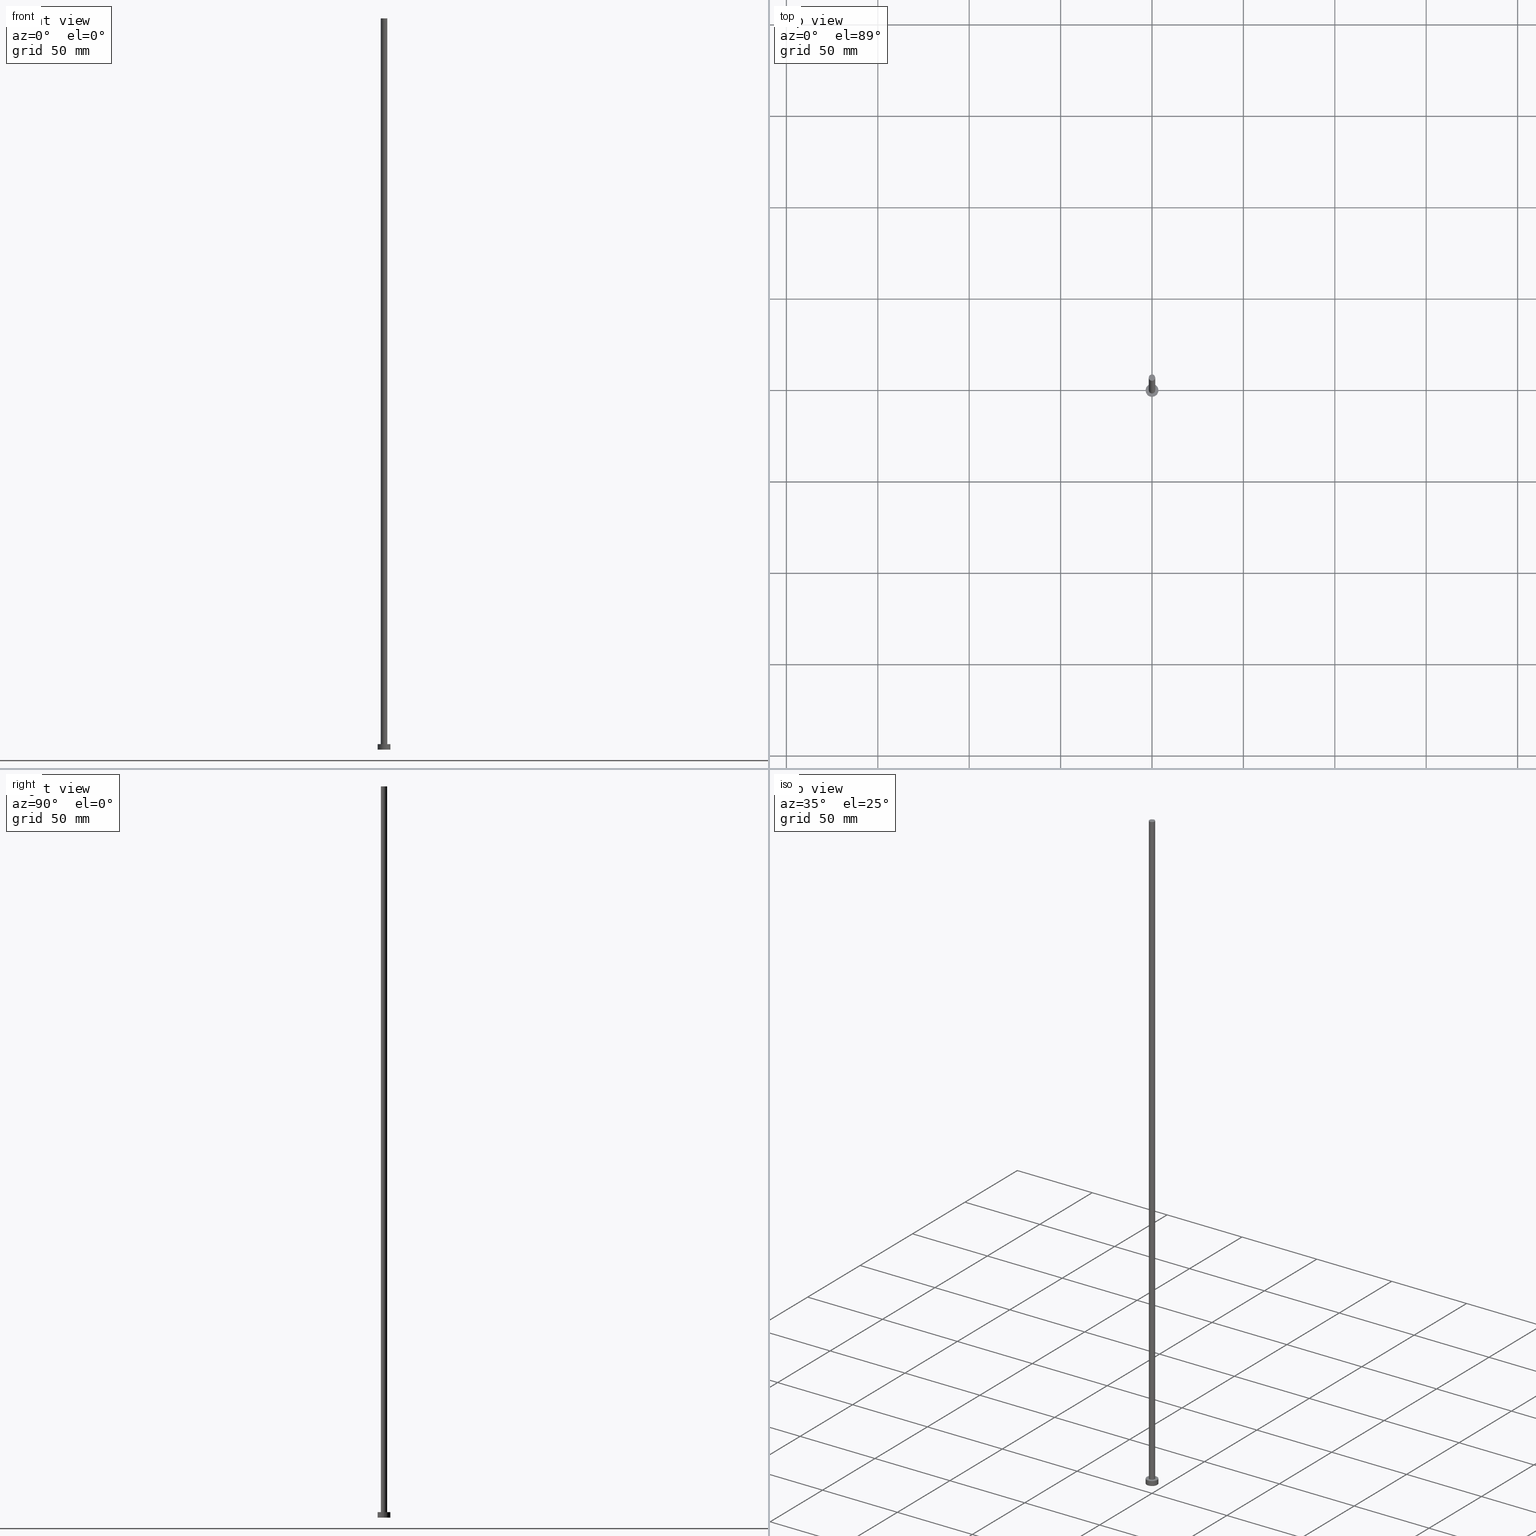
[diagram: canonical four-view strip — front | top / right | iso, engineering-drawing reading convention]
A machine part, canonical four-view strip (front | top / right | iso — engineering-drawing reading convention). The complete STEP part file that produces these views, byte-faithful:
ISO-10303-21;
HEADER;
FILE_DESCRIPTION (( 'STEP AP203' ),
    '1' );
FILE_NAME ('467d.STEP',
    '2023-02-12T12:03:25',
    ( '' ),
    ( '' ),
    'SwSTEP 2.0',
    'SolidWorks 2019',
    '' );
FILE_SCHEMA (( 'CONFIG_CONTROL_DESIGN' ));
ENDSEC;

DATA;
#1 = APPROVAL_PERSON_ORGANIZATION ( #36, #102, #82 ) ;
#2 = PERSON_AND_ORGANIZATION ( #38, #170 ) ;
#3 = APPLICATION_CONTEXT ( 'configuration controlled 3d designs of mechanical parts and assemblies' ) ;
#4 = COORDINATED_UNIVERSAL_TIME_OFFSET ( 1, 0, .AHEAD. ) ;
#5 = EDGE_CURVE ( 'NONE', #96, #56, #227, .T. ) ;
#6 = CARTESIAN_POINT ( 'NONE',  ( 0.000000000000000000, 0.000000000000000000, 400.0000000000000000 ) ) ;
#7 = FACE_OUTER_BOUND ( 'NONE', #181, .T. ) ;
#8 = DESIGN_CONTEXT ( 'detailed design', #3, 'design' ) ;
#9 = CARTESIAN_POINT ( 'NONE',  ( 0.000000000000000000, 0.000000000000000000, 400.0000000000000000 ) ) ;
#10 = ADVANCED_FACE ( 'NONE', ( #7 ), #74, .T. ) ;
#11 = DIRECTION ( 'NONE',  ( 1.000000000000000000, 0.000000000000000000, 0.000000000000000000 ) ) ;
#12 = CARTESIAN_POINT ( 'NONE',  ( 0.000000000000000000, 0.000000000000000000, 400.0000000000000000 ) ) ;
#13 = ORIENTED_EDGE ( 'NONE', *, *, #97, .F. ) ;
#14 = EDGE_CURVE ( 'NONE', #236, #185, #135, .T. ) ;
#15 = DIRECTION ( 'NONE',  ( -0.000000000000000000, -0.000000000000000000, -1.000000000000000000 ) ) ;
#16 = ORIENTED_EDGE ( 'NONE', *, *, #247, .T. ) ;
#17 = CARTESIAN_POINT ( 'NONE',  ( 0.000000000000000000, 0.000000000000000000, 3.000000000000000000 ) ) ;
#18 = AXIS2_PLACEMENT_3D ( 'NONE', #160, #48, #11 ) ;
#19 = MANIFOLD_SOLID_BREP ( 'P�idat vysunut�m3', #206 ) ;
#20 = DIRECTION ( 'NONE',  ( 0.000000000000000000, 0.000000000000000000, 1.000000000000000000 ) ) ;
#21 = ADVANCED_FACE ( 'NONE', ( #161, #140 ), #158, .T. ) ;
#22 = DATE_TIME_ROLE ( 'creation_date' ) ;
#23 = PERSON_AND_ORGANIZATION ( #38, #170 ) ;
#24 = AXIS2_PLACEMENT_3D ( 'NONE', #210, #15, #225 ) ;
#25 = APPROVAL ( #216, 'NEUR�EN�' ) ;
#26 = CALENDAR_DATE ( 2023, 12, 2 ) ;
#27 = CALENDAR_DATE ( 2023, 12, 2 ) ;
#28 = DIRECTION ( 'NONE',  ( -0.000000000000000000, -0.000000000000000000, -1.000000000000000000 ) ) ;
#29 = DIRECTION ( 'NONE',  ( 0.000000000000000000, 0.000000000000000000, 1.000000000000000000 ) ) ;
#30 = LINE ( 'NONE', #104, #254 ) ;
#31 = DIRECTION ( 'NONE',  ( -0.000000000000000000, -0.000000000000000000, -1.000000000000000000 ) ) ;
#32 = CYLINDRICAL_SURFACE ( 'NONE', #146, 1.750000000000000000 ) ;
#33 = EDGE_LOOP ( 'NONE', ( #127, #142, #108, #110 ) ) ;
#34 = CYLINDRICAL_SURFACE ( 'NONE', #57, 3.500000000000000000 ) ;
#35 = ORIENTED_EDGE ( 'NONE', *, *, #243, .T. ) ;
#36 = PERSON_AND_ORGANIZATION ( #38, #170 ) ;
#37 = FACE_OUTER_BOUND ( 'NONE', #186, .T. ) ;
#38 = PERSON ( 'NEUR�EN�', 'NEUR�EN�', 'NEUR�EN�', ('NEUR�EN�'), ('NEUR�EN�'), ('NEUR�EN�') ) ;
#39 = MECHANICAL_CONTEXT ( 'NONE', #188, 'mechanical' ) ;
#40 = CYLINDRICAL_SURFACE ( 'NONE', #24, 3.500000000000000000 ) ;
#41 = APPROVAL_DATE_TIME ( #193, #212 ) ;
#42 = LOCAL_TIME ( 13, 3, 25.00000000000000000, #233 ) ;
#43 = CALENDAR_DATE ( 2023, 12, 2 ) ;
#44 = PERSON_AND_ORGANIZATION ( #38, #170 ) ;
#45 = AXIS2_PLACEMENT_3D ( 'NONE', #6, #92, #90 ) ;
#46 = CIRCLE ( 'NONE', #248, 1.750000000000000000 ) ;
#47 = CARTESIAN_POINT ( 'NONE',  ( 0.000000000000000000, 0.000000000000000000, 3.000000000000000000 ) ) ;
#48 = DIRECTION ( 'NONE',  ( 0.000000000000000000, 0.000000000000000000, 1.000000000000000000 ) ) ;
#49 = CARTESIAN_POINT ( 'NONE',  ( 0.000000000000000000, 0.000000000000000000, 3.000000000000000000 ) ) ;
#50 = VECTOR ( 'NONE', #251, 1000.000000000000000 ) ;
#51 = CIRCLE ( 'NONE', #105, 3.500000000000000000 ) ;
#52 = ORIENTED_EDGE ( 'NONE', *, *, #180, .F. ) ;
#53 = DIRECTION ( 'NONE',  ( 0.000000000000000000, 0.000000000000000000, 1.000000000000000000 ) ) ;
#54 = ORIENTED_EDGE ( 'NONE', *, *, #109, .F. ) ;
#55 = FACE_OUTER_BOUND ( 'NONE', #75, .T. ) ;
#56 = VERTEX_POINT ( 'NONE', #107 ) ;
#57 = AXIS2_PLACEMENT_3D ( 'NONE', #17, #77, #117 ) ;
#58 = APPROVAL_PERSON_ORGANIZATION ( #232, #212, #255 ) ;
#59 = DIRECTION ( 'NONE',  ( 1.000000000000000000, 0.000000000000000000, 0.000000000000000000 ) ) ;
#60 = DIRECTION ( 'NONE',  ( 1.000000000000000000, 0.000000000000000000, 0.000000000000000000 ) ) ;
#61 = CC_DESIGN_DATE_AND_TIME_ASSIGNMENT ( #68, #22, ( #178 ) ) ;
#62 = DIRECTION ( 'NONE',  ( 0.000000000000000000, 0.000000000000000000, 1.000000000000000000 ) ) ;
#63 = CC_DESIGN_APPROVAL ( #102, ( #178 ) ) ;
#64 = EDGE_CURVE ( 'NONE', #226, #185, #30, .T. ) ;
#65 = PERSON_AND_ORGANIZATION ( #38, #170 ) ;
#66 = CC_DESIGN_APPROVAL ( #25, ( #148 ) ) ;
#67 = CC_DESIGN_APPROVAL ( #212, ( #71 ) ) ;
#68 = DATE_AND_TIME ( #213, #138 ) ;
#69 = AXIS2_PLACEMENT_3D ( 'NONE', #9, #28, #122 ) ;
#70 = DIRECTION ( 'NONE',  ( 1.000000000000000000, 0.000000000000000000, 0.000000000000000000 ) ) ;
#71 = PRODUCT_DEFINITION_FORMATION_WITH_SPECIFIED_SOURCE ( 'LIBOVOLN�', '', #177, .NOT_KNOWN. ) ;
#72 = ORIENTED_EDGE ( 'NONE', *, *, #180, .T. ) ;
#73 = CC_DESIGN_DATE_AND_TIME_ASSIGNMENT ( #100, #174, ( #148 ) ) ;
#74 = PLANE ( 'NONE',  #45 ) ;
#75 = EDGE_LOOP ( 'NONE', ( #13, #190, #35, #166 ) ) ;
#76 = CARTESIAN_POINT ( 'NONE',  ( 3.500000000000000000, 4.286263797015736595E-16, 0.000000000000000000 ) ) ;
#77 = DIRECTION ( 'NONE',  ( -0.000000000000000000, -0.000000000000000000, -1.000000000000000000 ) ) ;
#78 = EDGE_LOOP ( 'NONE', ( #246, #111 ) ) ;
#79 = CARTESIAN_POINT ( 'NONE',  ( -3.500000000000000000, 0.000000000000000000, 3.000000000000000000 ) ) ;
#80 = ORIENTED_EDGE ( 'NONE', *, *, #109, .T. ) ;
#81 = CIRCLE ( 'NONE', #18, 1.750000000000000000 ) ;
#82 = APPROVAL_ROLE ( '' ) ;
#83 = DIRECTION ( 'NONE',  ( 0.000000000000000000, 0.000000000000000000, 1.000000000000000000 ) ) ;
#84 = AXIS2_PLACEMENT_3D ( 'NONE', #49, #240, #201 ) ;
#85 = VECTOR ( 'NONE', #228, 1000.000000000000000 ) ;
#86 = SHAPE_DEFINITION_REPRESENTATION ( #131, #242 ) ;
#87 = ADVANCED_FACE ( 'NONE', ( #197 ), #203, .T. ) ;
#88 = ORIENTED_EDGE ( 'NONE', *, *, #151, .T. ) ;
#89 = LOCAL_TIME ( 13, 3, 25.00000000000000000, #175 ) ;
#90 = DIRECTION ( 'NONE',  ( 1.000000000000000000, 0.000000000000000000, -0.000000000000000000 ) ) ;
#91 = CARTESIAN_POINT ( 'NONE',  ( 3.500000000000000000, 4.286263797015736595E-16, 3.000000000000000000 ) ) ;
#92 = DIRECTION ( 'NONE',  ( 0.000000000000000000, 0.000000000000000000, 1.000000000000000000 ) ) ;
#93 = CARTESIAN_POINT ( 'NONE',  ( 1.750000000000000000, 2.143131898507868297E-16, 400.0000000000000000 ) ) ;
#94 = VERTEX_POINT ( 'NONE', #76 ) ;
#95 = CARTESIAN_POINT ( 'NONE',  ( -1.750000000000000000, 0.000000000000000000, 400.0000000000000000 ) ) ;
#96 = VERTEX_POINT ( 'NONE', #202 ) ;
#97 = EDGE_CURVE ( 'NONE', #96, #94, #241, .T. ) ;
#98 = DIRECTION ( 'NONE',  ( 1.000000000000000000, 0.000000000000000000, 0.000000000000000000 ) ) ;
#99 = AXIS2_PLACEMENT_3D ( 'NONE', #179, #143, #224 ) ;
#100 = DATE_AND_TIME ( #26, #42 ) ;
#101 = APPROVAL_STATUS ( 'not_yet_approved' ) ;
#102 = APPROVAL ( #171, 'NEUR�EN�' ) ;
#103 = APPROVAL_DATE_TIME ( #235, #25 ) ;
#104 = CARTESIAN_POINT ( 'NONE',  ( 1.750000000000000000, 2.143131898507868297E-16, 400.0000000000000000 ) ) ;
#105 = AXIS2_PLACEMENT_3D ( 'NONE', #139, #199, #59 ) ;
#106 = ORIENTED_EDGE ( 'NONE', *, *, #5, .T. ) ;
#107 = CARTESIAN_POINT ( 'NONE',  ( -3.500000000000000000, 0.000000000000000000, 3.000000000000000000 ) ) ;
#108 = ORIENTED_EDGE ( 'NONE', *, *, #141, .T. ) ;
#109 = EDGE_CURVE ( 'NONE', #226, #112, #81, .T. ) ;
#110 = ORIENTED_EDGE ( 'NONE', *, *, #243, .F. ) ;
#111 = ORIENTED_EDGE ( 'NONE', *, *, #198, .F. ) ;
#112 = VERTEX_POINT ( 'NONE', #244 ) ;
#113 = CC_DESIGN_PERSON_AND_ORGANIZATION_ASSIGNMENT ( #44, #173, ( #71 ) ) ;
#114 = PLANE ( 'NONE',  #221 ) ;
#115 = AXIS2_PLACEMENT_3D ( 'NONE', #189, #20, #98 ) ;
#116 = PERSON_AND_ORGANIZATION_ROLE ( 'design_owner' ) ;
#117 = DIRECTION ( 'NONE',  ( -1.000000000000000000, 0.000000000000000000, 0.000000000000000000 ) ) ;
#118 = CALENDAR_DATE ( 2023, 12, 2 ) ;
#119 = PERSON_AND_ORGANIZATION_ROLE ( 'creator' ) ;
#120 = PERSON_AND_ORGANIZATION_ROLE ( 'creator' ) ;
#121 = CC_DESIGN_PERSON_AND_ORGANIZATION_ASSIGNMENT ( #2, #154, ( #148 ) ) ;
#122 = DIRECTION ( 'NONE',  ( -1.000000000000000000, 0.000000000000000000, 0.000000000000000000 ) ) ;
#123 = EDGE_LOOP ( 'NONE', ( #54, #208, #219, #163 ) ) ;
#124 = DIRECTION ( 'NONE',  ( 1.000000000000000000, 0.000000000000000000, 0.000000000000000000 ) ) ;
#125 = EDGE_LOOP ( 'NONE', ( #229, #52, #16, #205 ) ) ;
#126 = FACE_OUTER_BOUND ( 'NONE', #125, .T. ) ;
#127 = ORIENTED_EDGE ( 'NONE', *, *, #5, .F. ) ;
#128 = DIRECTION ( 'NONE',  ( 0.000000000000000000, 0.000000000000000000, 1.000000000000000000 ) ) ;
#129 = EDGE_CURVE ( 'NONE', #147, #94, #172, .T. ) ;
#130 = ORIENTED_EDGE ( 'NONE', *, *, #129, .F. ) ;
#131 = PRODUCT_DEFINITION_SHAPE ( 'NONE', 'NONE',  #178 ) ;
#132 =( NAMED_UNIT ( * ) SI_UNIT ( $, .STERADIAN. ) SOLID_ANGLE_UNIT ( ) );
#133 = CARTESIAN_POINT ( 'NONE',  ( 0.000000000000000000, 0.000000000000000000, 0.000000000000000000 ) ) ;
#134 = APPROVAL_DATE_TIME ( #136, #102 ) ;
#135 = CIRCLE ( 'NONE', #249, 1.750000000000000000 ) ;
#136 = DATE_AND_TIME ( #43, #162 ) ;
#137 = DIRECTION ( 'NONE',  ( -0.000000000000000000, -0.000000000000000000, -1.000000000000000000 ) ) ;
#138 = LOCAL_TIME ( 13, 3, 25.00000000000000000, #195 ) ;
#139 = CARTESIAN_POINT ( 'NONE',  ( 0.000000000000000000, 0.000000000000000000, 3.000000000000000000 ) ) ;
#140 = FACE_OUTER_BOUND ( 'NONE', #145, .T. ) ;
#141 = EDGE_CURVE ( 'NONE', #94, #147, #220, .T. ) ;
#142 = ORIENTED_EDGE ( 'NONE', *, *, #97, .T. ) ;
#143 = DIRECTION ( 'NONE',  ( 0.000000000000000000, 0.000000000000000000, 1.000000000000000000 ) ) ;
#144 = ADVANCED_FACE ( 'NONE', ( #126 ), #32, .T. ) ;
#145 = EDGE_LOOP ( 'NONE', ( #88, #106 ) ) ;
#146 = AXIS2_PLACEMENT_3D ( 'NONE', #12, #137, #217 ) ;
#147 = VERTEX_POINT ( 'NONE', #156 ) ;
#148 = SECURITY_CLASSIFICATION ( '', '', #194 ) ;
#149 = LINE ( 'NONE', #95, #85 ) ;
#150 = COORDINATED_UNIVERSAL_TIME_OFFSET ( 1, 0, .AHEAD. ) ;
#151 = EDGE_CURVE ( 'NONE', #56, #96, #51, .T. ) ;
#152 = APPLICATION_PROTOCOL_DEFINITION ( 'international standard', 'config_control_design', 1994, #3 ) ;
#153 = CIRCLE ( 'NONE', #115, 1.750000000000000000 ) ;
#154 = PERSON_AND_ORGANIZATION_ROLE ( 'classification_officer' ) ;
#155 = CC_DESIGN_PERSON_AND_ORGANIZATION_ASSIGNMENT ( #176, #120, ( #178 ) ) ;
#156 = CARTESIAN_POINT ( 'NONE',  ( -3.500000000000000000, 0.000000000000000000, 0.000000000000000000 ) ) ;
#157 = CARTESIAN_POINT ( 'NONE',  ( 0.000000000000000000, 0.000000000000000000, 0.000000000000000000 ) ) ;
#158 = PLANE ( 'NONE',  #84 ) ;
#159 = ADVANCED_FACE ( 'NONE', ( #37 ), #114, .F. ) ;
#160 = CARTESIAN_POINT ( 'NONE',  ( 0.000000000000000000, 0.000000000000000000, 400.0000000000000000 ) ) ;
#161 = FACE_BOUND ( 'NONE', #78, .T. ) ;
#162 = LOCAL_TIME ( 13, 3, 25.00000000000000000, #150 ) ;
#163 = ORIENTED_EDGE ( 'NONE', *, *, #247, .F. ) ;
#164 = CC_DESIGN_PERSON_AND_ORGANIZATION_ASSIGNMENT ( #23, #119, ( #71 ) ) ;
#165 = PERSON_AND_ORGANIZATION ( #38, #170 ) ;
#166 = ORIENTED_EDGE ( 'NONE', *, *, #129, .T. ) ;
#167 = APPLICATION_PROTOCOL_DEFINITION ( 'international standard', 'config_control_design', 1994, #188 ) ;
#168 = CARTESIAN_POINT ( 'NONE',  ( -1.750000000000000000, 0.000000000000000000, 3.000000000000000000 ) ) ;
#169 = VECTOR ( 'NONE', #31, 1000.000000000000000 ) ;
#170 = ORGANIZATION ( 'NEUR�EN�', 'NEUR�EN�', '' ) ;
#171 = APPROVAL_STATUS ( 'not_yet_approved' ) ;
#172 = CIRCLE ( 'NONE', #99, 3.500000000000000000 ) ;
#173 = PERSON_AND_ORGANIZATION_ROLE ( 'design_supplier' ) ;
#174 = DATE_TIME_ROLE ( 'classification_date' ) ;
#175 = COORDINATED_UNIVERSAL_TIME_OFFSET ( 1, 0, .AHEAD. ) ;
#176 = PERSON_AND_ORGANIZATION ( #38, #170 ) ;
#177 = PRODUCT ( '467d', '467d', '', ( #39 ) ) ;
#178 = PRODUCT_DEFINITION ( 'NEZN�M�', '', #71, #8 ) ;
#179 = CARTESIAN_POINT ( 'NONE',  ( 0.000000000000000000, 0.000000000000000000, 0.000000000000000000 ) ) ;
#180 = EDGE_CURVE ( 'NONE', #112, #226, #46, .T. ) ;
#181 = EDGE_LOOP ( 'NONE', ( #72, #80 ) ) ;
#182 = APPROVAL_PERSON_ORGANIZATION ( #65, #25, #196 ) ;
#183 = DIRECTION ( 'NONE',  ( -0.000000000000000000, -0.000000000000000000, -1.000000000000000000 ) ) ;
#184 = CARTESIAN_POINT ( 'NONE',  ( 0.000000000000000000, 0.000000000000000000, 3.000000000000000000 ) ) ;
#185 = VERTEX_POINT ( 'NONE', #231 ) ;
#186 = EDGE_LOOP ( 'NONE', ( #130, #239 ) ) ;
#187 = ADVANCED_FACE ( 'NONE', ( #55 ), #34, .T. ) ;
#188 = APPLICATION_CONTEXT ( 'configuration controlled 3d designs of mechanical parts and assemblies' ) ;
#189 = CARTESIAN_POINT ( 'NONE',  ( 0.000000000000000000, 0.000000000000000000, 3.000000000000000000 ) ) ;
#190 = ORIENTED_EDGE ( 'NONE', *, *, #151, .F. ) ;
#191 = CARTESIAN_POINT ( 'NONE',  ( 0.000000000000000000, 0.000000000000000000, 400.0000000000000000 ) ) ;
#192 = FACE_OUTER_BOUND ( 'NONE', #33, .T. ) ;
#193 = DATE_AND_TIME ( #118, #89 ) ;
#194 = SECURITY_CLASSIFICATION_LEVEL ( 'unclassified' ) ;
#195 = COORDINATED_UNIVERSAL_TIME_OFFSET ( 1, 0, .AHEAD. ) ;
#196 = APPROVAL_ROLE ( '' ) ;
#197 = FACE_OUTER_BOUND ( 'NONE', #123, .T. ) ;
#198 = EDGE_CURVE ( 'NONE', #185, #236, #153, .T. ) ;
#199 = DIRECTION ( 'NONE',  ( 0.000000000000000000, 0.000000000000000000, 1.000000000000000000 ) ) ;
#200 = CC_DESIGN_SECURITY_CLASSIFICATION ( #148, ( #71 ) ) ;
#201 = DIRECTION ( 'NONE',  ( 1.000000000000000000, 0.000000000000000000, -0.000000000000000000 ) ) ;
#202 = CARTESIAN_POINT ( 'NONE',  ( 3.500000000000000000, 4.286263797015736595E-16, 3.000000000000000000 ) ) ;
#203 = CYLINDRICAL_SURFACE ( 'NONE', #69, 1.750000000000000000 ) ;
#204 = ADVANCED_FACE ( 'NONE', ( #192 ), #40, .T. ) ;
#205 = ORIENTED_EDGE ( 'NONE', *, *, #14, .T. ) ;
#206 = CLOSED_SHELL ( 'NONE', ( #87, #204, #187, #21, #159, #144, #10 ) ) ;
#207 = DIRECTION ( 'NONE',  ( 1.000000000000000000, 0.000000000000000000, 0.000000000000000000 ) ) ;
#208 = ORIENTED_EDGE ( 'NONE', *, *, #64, .T. ) ;
#209 =( NAMED_UNIT ( * ) PLANE_ANGLE_UNIT ( ) SI_UNIT ( $, .RADIAN. ) );
#210 = CARTESIAN_POINT ( 'NONE',  ( 0.000000000000000000, 0.000000000000000000, 3.000000000000000000 ) ) ;
#211 = DIRECTION ( 'NONE',  ( 1.000000000000000000, 0.000000000000000000, -0.000000000000000000 ) ) ;
#212 = APPROVAL ( #101, 'NEUR�EN�' ) ;
#213 = CALENDAR_DATE ( 2023, 12, 2 ) ;
#214 = AXIS2_PLACEMENT_3D ( 'NONE', #157, #53, #70 ) ;
#215 = LOCAL_TIME ( 13, 3, 25.00000000000000000, #4 ) ;
#216 = APPROVAL_STATUS ( 'not_yet_approved' ) ;
#217 = DIRECTION ( 'NONE',  ( -1.000000000000000000, 0.000000000000000000, 0.000000000000000000 ) ) ;
#218 = DIRECTION ( 'NONE',  ( 1.000000000000000000, 0.000000000000000000, 0.000000000000000000 ) ) ;
#219 = ORIENTED_EDGE ( 'NONE', *, *, #198, .T. ) ;
#220 = CIRCLE ( 'NONE', #214, 3.500000000000000000 ) ;
#221 = AXIS2_PLACEMENT_3D ( 'NONE', #133, #128, #211 ) ;
#222 = DIRECTION ( 'NONE',  ( 0.000000000000000000, 0.000000000000000000, 1.000000000000000000 ) ) ;
#223 = CC_DESIGN_PERSON_AND_ORGANIZATION_ASSIGNMENT ( #165, #116, ( #177 ) ) ;
#224 = DIRECTION ( 'NONE',  ( 1.000000000000000000, 0.000000000000000000, 0.000000000000000000 ) ) ;
#225 = DIRECTION ( 'NONE',  ( -1.000000000000000000, 0.000000000000000000, 0.000000000000000000 ) ) ;
#226 = VERTEX_POINT ( 'NONE', #93 ) ;
#227 = CIRCLE ( 'NONE', #237, 3.500000000000000000 ) ;
#228 = DIRECTION ( 'NONE',  ( -0.000000000000000000, -0.000000000000000000, -1.000000000000000000 ) ) ;
#229 = ORIENTED_EDGE ( 'NONE', *, *, #64, .F. ) ;
#230 = UNCERTAINTY_MEASURE_WITH_UNIT (LENGTH_MEASURE( 1.000000000000000082E-05 ), #252, 'distance_accuracy_value', 'NONE');
#231 = CARTESIAN_POINT ( 'NONE',  ( 1.750000000000000000, 2.143131898507868297E-16, 3.000000000000000000 ) ) ;
#232 = PERSON_AND_ORGANIZATION ( #38, #170 ) ;
#233 = COORDINATED_UNIVERSAL_TIME_OFFSET ( 1, 0, .AHEAD. ) ;
#234 = AXIS2_PLACEMENT_3D ( 'NONE', #250, #62, #60 ) ;
#235 = DATE_AND_TIME ( #27, #215 ) ;
#236 = VERTEX_POINT ( 'NONE', #168 ) ;
#237 = AXIS2_PLACEMENT_3D ( 'NONE', #47, #29, #124 ) ;
#238 =( GEOMETRIC_REPRESENTATION_CONTEXT ( 3 ) GLOBAL_UNCERTAINTY_ASSIGNED_CONTEXT ( ( #230 ) ) GLOBAL_UNIT_ASSIGNED_CONTEXT ( ( #252, #209, #132 ) ) REPRESENTATION_CONTEXT ( 'NONE', 'WORKASPACE' ) );
#239 = ORIENTED_EDGE ( 'NONE', *, *, #141, .F. ) ;
#240 = DIRECTION ( 'NONE',  ( 0.000000000000000000, 0.000000000000000000, 1.000000000000000000 ) ) ;
#241 = LINE ( 'NONE', #91, #169 ) ;
#242 = ADVANCED_BREP_SHAPE_REPRESENTATION ( '467d', ( #19, #234 ), #238 ) ;
#243 = EDGE_CURVE ( 'NONE', #56, #147, #245, .T. ) ;
#244 = CARTESIAN_POINT ( 'NONE',  ( -1.750000000000000000, 0.000000000000000000, 400.0000000000000000 ) ) ;
#245 = LINE ( 'NONE', #79, #50 ) ;
#246 = ORIENTED_EDGE ( 'NONE', *, *, #14, .F. ) ;
#247 = EDGE_CURVE ( 'NONE', #112, #236, #149, .T. ) ;
#248 = AXIS2_PLACEMENT_3D ( 'NONE', #191, #83, #207 ) ;
#249 = AXIS2_PLACEMENT_3D ( 'NONE', #184, #222, #218 ) ;
#250 = CARTESIAN_POINT ( 'NONE',  ( 0.000000000000000000, 0.000000000000000000, 0.000000000000000000 ) ) ;
#251 = DIRECTION ( 'NONE',  ( -0.000000000000000000, -0.000000000000000000, -1.000000000000000000 ) ) ;
#252 =( LENGTH_UNIT ( ) NAMED_UNIT ( * ) SI_UNIT ( .MILLI., .METRE. ) );
#253 = PRODUCT_RELATED_PRODUCT_CATEGORY ( 'detail', '', ( #177 ) ) ;
#254 = VECTOR ( 'NONE', #183, 1000.000000000000000 ) ;
#255 = APPROVAL_ROLE ( '' ) ;
ENDSEC;
END-ISO-10303-21;
